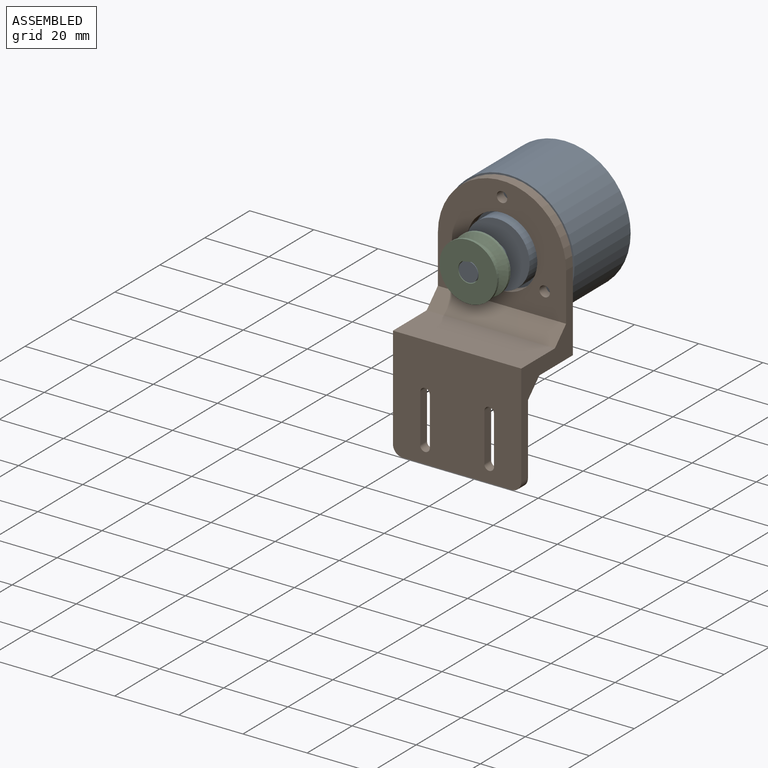
[diagram: assembled view]
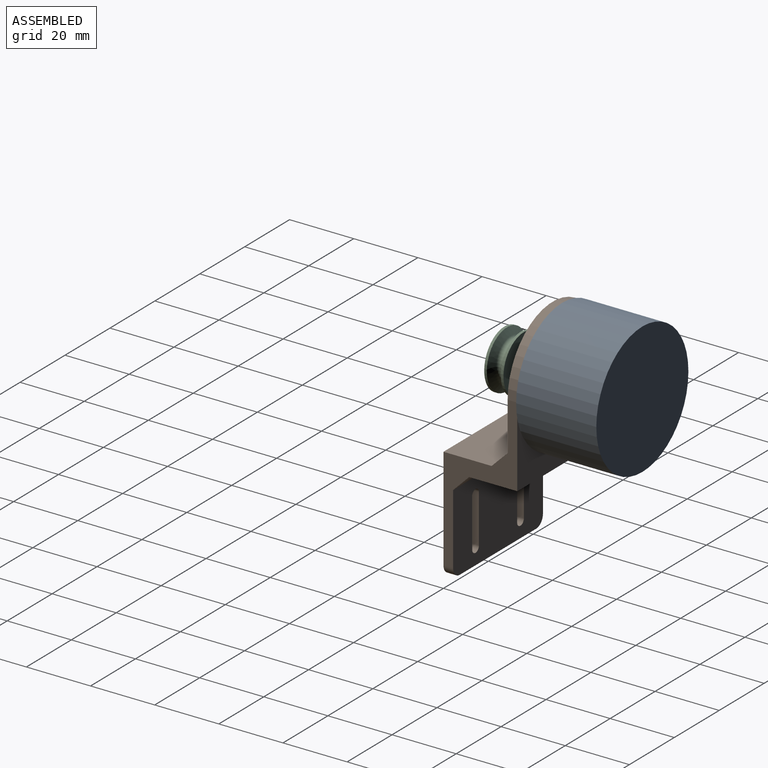
[diagram: assembled view, second angle]
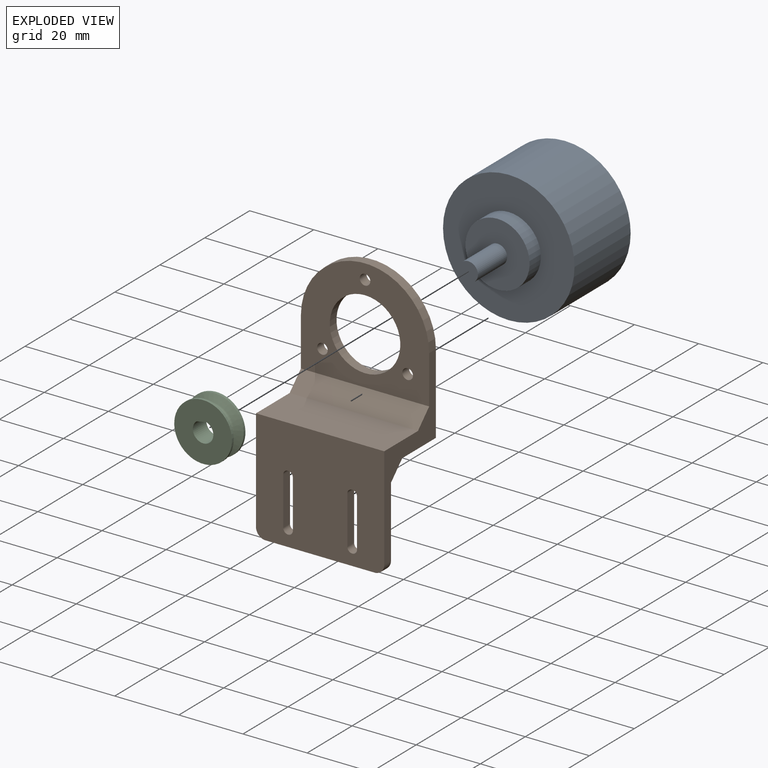
[diagram: exploded view]
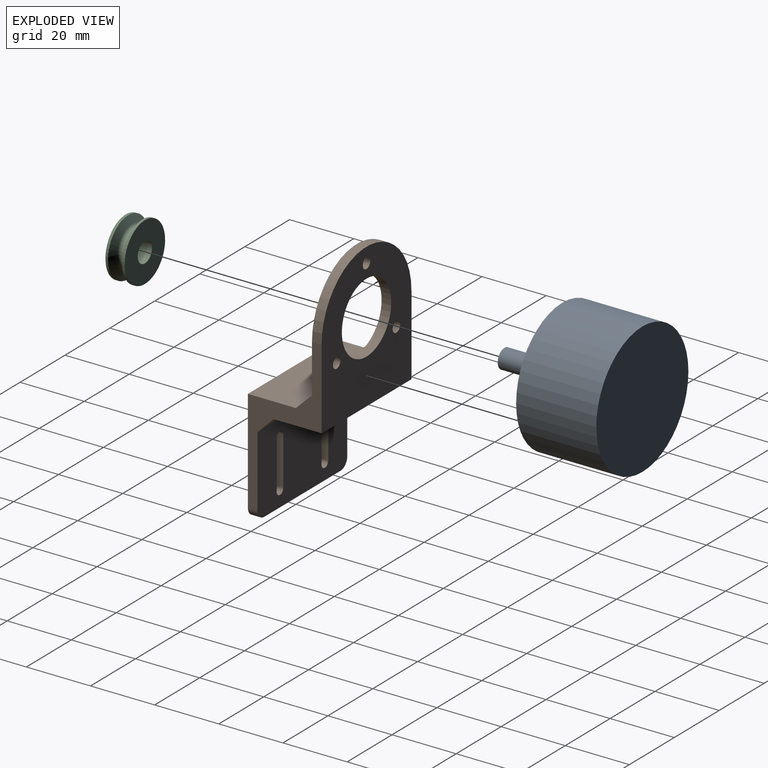
[diagram: exploded view, second angle]
ASSEMBLY  parts=3 mates=3
PART A: 7 faces, bbox 41x43x41 mm
  f0: cylinder r=20.5mm len=41mm, axis (0,1,0), area 3220.1mm2, adj f1,f2
  f1: plane 41x41mm, normal (0,-1,0), area 1006.1mm2, adj f0,f3
  f2: plane 41x41mm, normal (0,1,0), area 1320.3mm2, adj f0
  f3: cylinder r=10mm len=20mm, axis (0,1,0), area 314.2mm2, adj f1,f4
  f4: plane 20x20mm, normal (0,-1,0), area 285.9mm2, adj f3,f5
  f5: cylinder r=3mm len=13mm, axis (0,1,0), area 245mm2, adj f4,f6
  f6: plane 6x6mm, normal (0,-1,0), area 28.3mm2, adj f5
PART B: 26 faces, bbox 40x23x75 mm
  f0: plane 40x15mm, normal (0,0,-1), area 600mm2, adj f6,f8,f9,f23
  f1: cylinder r=20mm len=40mm, axis (0,1,0), area 188.5mm2, adj f6,f7,f8,f9
  f2: cylinder r=11mm len=22mm, axis (0,1,0), area 207.3mm2, adj f6,f7
  f3: cylinder r=1.65mm len=3.3mm, axis (0,1,0), area 31.1mm2, adj f6,f7
  f4: cylinder r=1.65mm len=3.3mm, axis (0,1,0), area 31.1mm2, adj f6,f7
  f5: cylinder r=1.65mm len=3.3mm, axis (0,1,0), area 31.1mm2, adj f6,f7
  f6: plane 45x40mm, normal (0,-1,0), area 1222.5mm2, adj f0,f1,f2,f3,f4,f5,f8,f9
  f7: plane 40x35mm, normal (0,1,0), area 822.5mm2, adj f1,f2,f3,f4,f5,f8,f9,f22
  f8: plane 52x23mm, normal (-1,0,0), area 281mm2, adj f0,f1,f6,f7,f10,f11,f12,f22
  f9: plane 52x23mm, normal (1,0,0), area 281mm2, adj f0,f1,f6,f7,f10,f11,f12,f22
  f10: plane 40x15mm, normal (0,0,1), area 600mm2, adj f8,f9,f11,f22
  f11: plane 40x35mm, normal (0,1,0), area 1292mm2, adj f8,f9,f10,f13,f14,f15,f16,f17
  f12: plane 40x25mm, normal (0,-1,0), area 892mm2, adj f8,f9,f13,f14,f15,f16,f17,f18
  f13: plane 34x3mm, normal (0,0,-1), area 102mm2, adj f11,f12,f24,f25
  f14: plane 15x3mm, normal (-1,0,0), area 45mm2, adj f11,f12,f15,f17
  f15: cylinder r=1.5mm len=3mm, axis (0,-1,0), area 14.1mm2, adj f11,f12,f14,f16
  f16: plane 15x3mm, normal (1,0,0), area 45mm2, adj f11,f12,f15,f17
  f17: cylinder r=1.5mm len=3mm, axis (0,-1,0), area 14.1mm2, adj f11,f12,f14,f16
  f18: cylinder r=1.5mm len=3mm, axis (0,-1,0), area 14.1mm2, adj f11,f12,f19,f21
  f19: plane 15x3mm, normal (1,0,0), area 45mm2, adj f11,f12,f18,f20
  f20: cylinder r=1.5mm len=3mm, axis (0,-1,0), area 14.1mm2, adj f11,f12,f19,f21
  f21: plane 15x3mm, normal (-1,0,0), area 45mm2, adj f11,f12,f18,f20
  f22: plane 40x5mm, normal (0,0.71,0.71), area 282.8mm2, adj f7,f8,f9,f10
  f23: plane 40x5mm, normal (0,-0.71,-0.71), area 282.8mm2, adj f0,f8,f9,f12
  f24: cylinder r=3mm len=3mm, axis (0,-1,0), area 14.1mm2, adj f8,f11,f12,f13
  f25: cylinder r=3mm len=3mm, axis (0,-1,0), area 14.1mm2, adj f9,f11,f12,f13
PART C: 9 faces, bbox 18x18x6 mm
  f0: cone r=6.91mm half-angle=61.2deg, axis (0,0,-1), area 119.1mm2, adj f1,f6
  f1: torus R=7.49mm, axis (0,0,-1), area 104.8mm2, adj f0,f2
  f2: cone r=9mm half-angle=61.2deg, axis (0,0,1), area 119.1mm2, adj f1,f3
  f3: cylinder r=9mm len=18mm, axis (0,0,-1), area 45.2mm2, adj f2,f4
  f4: plane 18x18mm, normal (0,0,1), area 223.1mm2, adj f3,f7,f8
  f5: plane 18x18mm, normal (0,0,-1), area 223.1mm2, adj f6,f7,f8
  f6: cylinder r=9mm len=18mm, axis (0,0,-1), area 45.2mm2, adj f0,f5
  f7: cylinder r=3.2mm len=6.4mm, axis (0,0,1), area 101.2mm2, adj f4,f5,f8
  f8: plane 6x3.1mm, normal (1,0,0), area 18.6mm2, adj f4,f5,f7
PLACE A t=(-23.56,5.55,-3.52)mm fixed
PLACE B rot(axis=(0,0,1),180deg) t=(-23.56,-22.45,-3.52)mm
PLACE C rot(axis=(-0.65,0.54,0.54),114.1deg) t=(-23.56,-34.46,-3.52)mm
MATE cylindrical B.f2 <-> A.f3  axis (0,-1,0) through (-23.56,-20.95,-3.52)mm
MATE planar B.f6 <-> A.f0  axis (0,1,0) through (-23.56,-19.45,-9.38)mm
MATE cylindrical A.f5 <-> C.f7  axis (0,1,0) through (-23.56,-30.95,-3.52)mm
